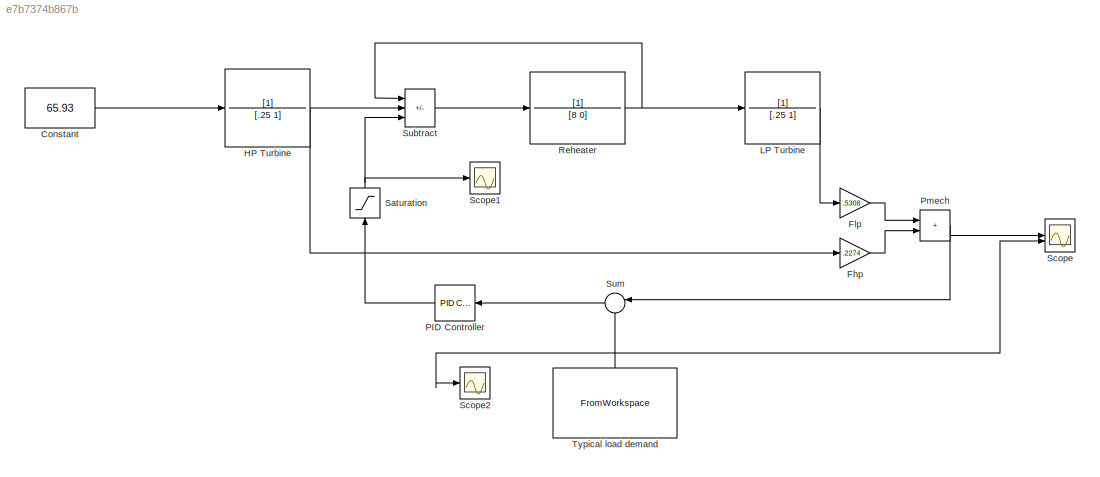
MODEL slx_e7b7374b867b
KIND model
CONFIG AbsTol = auto
CONFIG EnableMultiTasking = off
CONFIG FixedStep = auto
CONFIG MaxStep = auto
CONFIG MinStep = auto
CONFIG RelTol = 1e-3
CONFIG SampleTimeConstraint = Unconstrained
CONFIG SolverName = VariableStepAuto
CONFIG StartTime = 0.0
CONFIG StopTime = 86400
BLOCK [Constant] Constant
  Value = 65.93
BLOCK [Gain] Fhp
  Gain = .2274
BLOCK [Gain] Flp
  Gain = .5308
BLOCK [TransferFcn] HP Turbine
  Denominator = [.25 1]
BLOCK [TransferFcn] LP Turbine
  Denominator = [.25 1]
BLOCK [Reference] PID Controller  REF=slpidlib/PID Controller
  LibrarySourceBlock = simulink/Continuous/PID Controller
  NameLocation = top
  SourceBlock = slpidlib/PID Controller
  SourceType = PID 1dof
BLOCK [Sum] Pmech
  IconShape = rectangular
BLOCK [TransferFcn] Reheater
  Denominator = [8 0]
BLOCK [Saturate] Saturation
  LowerLimit = 0
  NameLocation = right
  UpperLimit = 65.93
BLOCK [Scope] Scope
  Floating = off
  NumInputPorts = 2
  ScopeSpecificationString = Simulink.scopes.TimeScopeBlockCfg('CurrentConfiguration', extmgr.ConfigurationSet(extmgr.Configuration('Core','General UI',true),extmgr.Configuration('Core','Source UI',true),extmgr.Configuration('Sources','WiredSimulink',true),extmgr.Configuration('Visuals','Time Domain',true,'SerializedDisplays',{struct('MinYLimReal','-6.19058','MaxYLimReal','55.7152','YLabelReal','','MinYLimMag','0.00000','MaxY...<+1395ch>
BLOCK [Scope] Scope1
  Floating = off
  NumInputPorts = 1
  ScopeSpecificationString = Simulink.scopes.TimeScopeBlockCfg('CurrentConfiguration', extmgr.ConfigurationSet(extmgr.Configuration('Core','General UI',true),extmgr.Configuration('Core','Source UI',true),extmgr.Configuration('Sources','WiredSimulink',true,'DataLoggingVariableName','ScopeData1'),extmgr.Configuration('Visuals','Time Domain',true,'SerializedDisplays',{struct('MinYLimReal','-8.24125','MaxYLimReal','74.17125','YLa...<+1402ch>
BLOCK [Scope] Scope2
  Floating = off
  NumInputPorts = 1
  ScopeSpecificationString = Simulink.scopes.TimeScopeBlockCfg('CurrentConfiguration', extmgr.ConfigurationSet(extmgr.Configuration('Core','General UI',true),extmgr.Configuration('Core','Source UI',true),extmgr.Configuration('Sources','WiredSimulink',true,'DataLoggingVariableName','ScopeData2'),extmgr.Configuration('Visuals','Time Domain',true,'SerializedDisplays',{struct('MinYLimReal','20.07901','MaxYLimReal','50.32664','YLa...<+1413ch>
BLOCK [Sum] Subtract
  IconShape = rectangular
  Inputs = -+-
BLOCK [Sum] Sum
  Inputs = |-+
  NameLocation = top
BLOCK [FromWorkspace] Typical load demand
  NameLocation = right
  SampleTime = 1
  VariableName = simulinkloadDemand
LINE Constant:1 -> HP Turbine:1
LINE Fhp:1 -> Pmech:2
LINE Flp:1 -> Pmech:1
NET HP Turbine:1 -> Fhp:1, Subtract:2
LINE LP Turbine:1 -> Flp:1
LINE PID Controller:1 -> Saturation:1
NET Pmech:1 -> Scope:1, Sum:1
NET Reheater:1 -> LP Turbine:1, Subtract:1
NET Saturation:1 -> Scope1:1, Subtract:3
LINE Subtract:1 -> Reheater:1
LINE Sum:1 -> PID Controller:1
NET Typical load demand:1 -> Scope2:1, Scope:2, Sum:2
note: NET lines group one-source signal fan-out (src -> all destinations, sorted); 1:1 wires keep LINE
